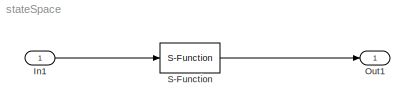
MODEL stateSpace
KIND model
BLOCK [Inport] In1
  IconDisplay = Port number
  SID = 2
BLOCK [Outport] Out1
  IconDisplay = Port number
  SID = 1
BLOCK [S-Function] S-Function
  EnableBusSupport = off
  FunctionName = csfunc6
  Parameters = flute,oboe,clarinet
  Ports = [1, 1]
  SFcnIsStateOwnerBlock = off
  SFunctionDeploymentMode = off
  SID = 31
LINE In1:1 -> S-Function:1
LINE S-Function:1 -> Out1:1
